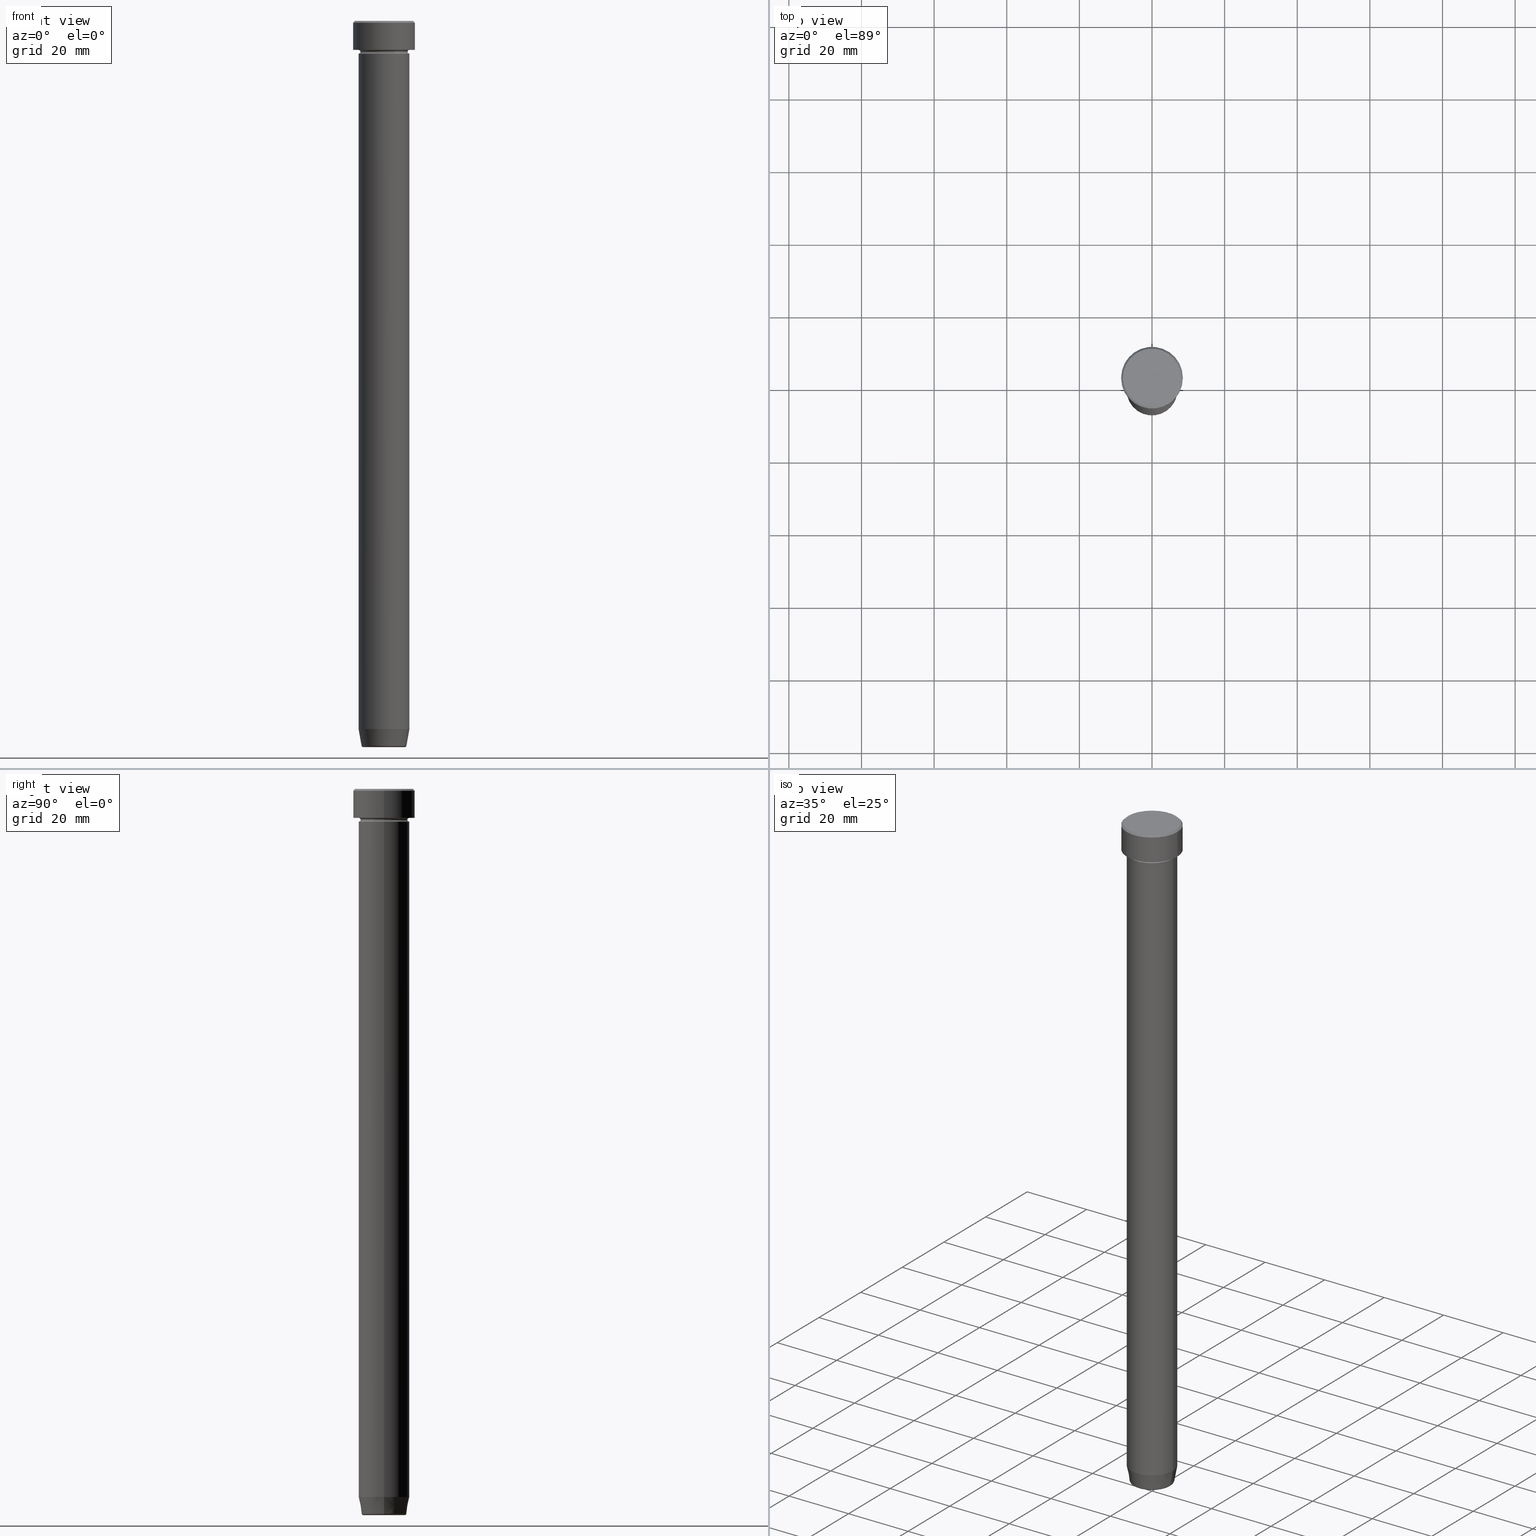
[diagram: canonical four-view strip — front | top / right | iso, engineering-drawing reading convention]
A machine part, canonical four-view strip (front | top / right | iso — engineering-drawing reading convention). The complete STEP part file that produces these views, byte-faithful:
ISO-10303-21;
HEADER;
FILE_DESCRIPTION (( 'STEP AP203' ),
    '1' );
FILE_NAME ('c11a.STEP',
    '2024-01-02T23:18:33',
    ( '' ),
    ( '' ),
    'SwSTEP 2.0',
    'SolidWorks 2019',
    '' );
FILE_SCHEMA (( 'CONFIG_CONTROL_DESIGN' ));
ENDSEC;

DATA;
#1 = EDGE_CURVE ( 'NONE', #361, #165, #266, .T. ) ;
#2 = DIRECTION ( 'NONE',  ( 1.000000000000000000, 0.000000000000000000, 0.000000000000000000 ) ) ;
#3 = ORIENTED_EDGE ( 'NONE', *, *, #259, .F. ) ;
#4 = CARTESIAN_POINT ( 'NONE',  ( -7.000000000000000888, 8.572527594031474176E-16, -8.500000000000000000 ) ) ;
#5 = DIRECTION ( 'NONE',  ( 0.000000000000000000, 0.000000000000000000, -1.000000000000000000 ) ) ;
#6 = ORIENTED_EDGE ( 'NONE', *, *, #192, .T. ) ;
#7 = CLOSED_SHELL ( 'NONE', ( #105, #390, #576, #452, #219, #418, #318, #239 ) ) ;
#8 = AXIS2_PLACEMENT_3D ( 'NONE', #4, #415, #190 ) ;
#9 = CARTESIAN_POINT ( 'NONE',  ( 0.000000000000000000, 0.000000000000000000, -9.000000000000001776 ) ) ;
#10 = CARTESIAN_POINT ( 'NONE',  ( 0.000000000000000000, 0.000000000000000000, -8.000000000000000000 ) ) ;
#11 = ORIENTED_EDGE ( 'NONE', *, *, #182, .F. ) ;
#12 = DIRECTION ( 'NONE',  ( -1.000000000000000000, -1.224646799147351482E-16, 0.000000000000000000 ) ) ;
#13 = ORIENTED_EDGE ( 'NONE', *, *, #35, .F. ) ;
#14 = PRODUCT_DEFINITION_FORMATION_WITH_SPECIFIED_SOURCE ( 'LIBOVOLN�', '', #560, .NOT_KNOWN. ) ;
#15 = AXIS2_PLACEMENT_3D ( 'NONE', #505, #429, #548 ) ;
#16 = ORGANIZATION ( 'NEUR�EN�', 'NEUR�EN�', '' ) ;
#17 = DIRECTION ( 'NONE',  ( 1.000000000000000000, 0.000000000000000000, 0.000000000000000000 ) ) ;
#18 = EDGE_LOOP ( 'NONE', ( #365, #121, #451, #296 ) ) ;
#19 = EDGE_CURVE ( 'NONE', #226, #348, #593, .T. ) ;
#20 = LINE ( 'NONE', #247, #319 ) ;
#21 = ORIENTED_EDGE ( 'NONE', *, *, #26, .F. ) ;
#22 = CARTESIAN_POINT ( 'NONE',  ( 6.999999999999999112, 0.000000000000000000, -22.00000000000000000 ) ) ;
#23 = ORIENTED_EDGE ( 'NONE', *, *, #182, .T. ) ;
#24 = CYLINDRICAL_SURFACE ( 'NONE', #363, 8.500000000000000000 ) ;
#25 = ORIENTED_EDGE ( 'NONE', *, *, #556, .T. ) ;
#26 = EDGE_CURVE ( 'NONE', #63, #348, #77, .T. ) ;
#27 = DIRECTION ( 'NONE',  ( 1.000000000000000000, 0.000000000000000000, 0.000000000000000000 ) ) ;
#28 = DIRECTION ( 'NONE',  ( 0.7071067811865487940, 8.659560562354950115E-17, -0.7071067811865463515 ) ) ;
#29 = FACE_OUTER_BOUND ( 'NONE', #434, .T. ) ;
#30 = ORIENTED_EDGE ( 'NONE', *, *, #435, .F. ) ;
#31 = CC_DESIGN_APPROVAL ( #49, ( #417 ) ) ;
#32 = DIRECTION ( 'NONE',  ( -0.000000000000000000, -0.000000000000000000, 1.000000000000000000 ) ) ;
#33 = CIRCLE ( 'NONE', #8, 0.5000000000000004441 ) ;
#34 = ORIENTED_EDGE ( 'NONE', *, *, #306, .T. ) ;
#35 = EDGE_CURVE ( 'NONE', #245, #441, #456, .T. ) ;
#36 = PERSON_AND_ORGANIZATION ( #555, #16 ) ;
#37 = DIRECTION ( 'NONE',  ( 0.1736481776669302479, 0.000000000000000000, 0.9848077530122081313 ) ) ;
#38 = PERSON_AND_ORGANIZATION ( #555, #16 ) ;
#39 = DIRECTION ( 'NONE',  ( 0.000000000000000000, -1.000000000000000000, 0.000000000000000000 ) ) ;
#40 = VERTEX_POINT ( 'NONE', #541 ) ;
#41 = DIRECTION ( 'NONE',  ( 1.000000000000000000, 0.000000000000000000, 0.000000000000000000 ) ) ;
#42 = CIRCLE ( 'NONE', #503, 0.5000000000000004441 ) ;
#43 = CARTESIAN_POINT ( 'NONE',  ( 0.000000000000000000, 0.000000000000000000, -9.000000000000001776 ) ) ;
#44 =( GEOMETRIC_REPRESENTATION_CONTEXT ( 3 ) GLOBAL_UNCERTAINTY_ASSIGNED_CONTEXT ( ( #52 ) ) GLOBAL_UNIT_ASSIGNED_CONTEXT ( ( #286, #469, #329 ) ) REPRESENTATION_CONTEXT ( 'NONE', 'WORKASPACE' ) );
#45 = EDGE_CURVE ( 'NONE', #361, #204, #419, .T. ) ;
#46 = CARTESIAN_POINT ( 'NONE',  ( -7.000000000000000888, 0.000000000000000000, -8.500000000000000000 ) ) ;
#47 = CARTESIAN_POINT ( 'NONE',  ( 7.000000000000000000, 0.000000000000000000, -9.000000000000001776 ) ) ;
#48 = ORIENTED_EDGE ( 'NONE', *, *, #58, .T. ) ;
#49 = APPROVAL ( #430, 'NEUR�EN�' ) ;
#50 = APPROVAL_DATE_TIME ( #371, #550 ) ;
#51 = CARTESIAN_POINT ( 'NONE',  ( -8.500000000000000000, 1.040949779275250140E-15, 0.000000000000000000 ) ) ;
#52 = UNCERTAINTY_MEASURE_WITH_UNIT (LENGTH_MEASURE( 1.000000000000000082E-05 ), #286, 'distance_accuracy_value', 'NONE');
#53 = SECURITY_CLASSIFICATION_LEVEL ( 'unclassified' ) ;
#54 = DIRECTION ( 'NONE',  ( 1.000000000000000000, 0.000000000000000000, 0.000000000000000000 ) ) ;
#55 = EDGE_LOOP ( 'NONE', ( #303, #25, #358, #11 ) ) ;
#56 = TOROIDAL_SURFACE ( 'NONE', #175, 7.000000000000000888, 0.5000000000000000000 ) ;
#57 = AXIS2_PLACEMENT_3D ( 'NONE', #546, #135, #598 ) ;
#58 = EDGE_CURVE ( 'NONE', #80, #63, #82, .T. ) ;
#59 = DIRECTION ( 'NONE',  ( -1.000000000000000000, 0.000000000000000000, 0.000000000000000000 ) ) ;
#60 = EDGE_LOOP ( 'NONE', ( #261, #13 ) ) ;
#61 = CARTESIAN_POINT ( 'NONE',  ( 6.999999999999999112, 0.000000000000000000, 0.000000000000000000 ) ) ;
#62 = APPLICATION_CONTEXT ( 'configuration controlled 3d designs of mechanical parts and assemblies' ) ;
#63 = VERTEX_POINT ( 'NONE', #586 ) ;
#64 = DATE_AND_TIME ( #114, #174 ) ;
#65 = DIRECTION ( 'NONE',  ( -0.000000000000000000, -0.000000000000000000, 1.000000000000000000 ) ) ;
#66 = EDGE_LOOP ( 'NONE', ( #543, #299, #34, #123 ) ) ;
#67 = ADVANCED_FACE ( 'NONE', ( #404 ), #56, .F. ) ;
#68 = AXIS2_PLACEMENT_3D ( 'NONE', #218, #401, #583 ) ;
#69 = CONICAL_SURFACE ( 'NONE', #408, 6.118365096457673680, 0.1745329251994328645 ) ;
#70 = CARTESIAN_POINT ( 'NONE',  ( 0.000000000000000000, 8.500000000000000000, -8.000000000000000000 ) ) ;
#71 = ORIENTED_EDGE ( 'NONE', *, *, #211, .T. ) ;
#72 = CARTESIAN_POINT ( 'NONE',  ( 0.000000000000000000, 6.999999999999999112, -22.00000000000000000 ) ) ;
#73 = ORIENTED_EDGE ( 'NONE', *, *, #284, .F. ) ;
#74 = EDGE_CURVE ( 'NONE', #441, #63, #313, .T. ) ;
#75 = DIRECTION ( 'NONE',  ( -1.000000000000000000, 0.000000000000000000, 0.000000000000000000 ) ) ;
#76 = ORIENTED_EDGE ( 'NONE', *, *, #373, .T. ) ;
#77 = CIRCLE ( 'NONE', #68, 8.500000000000000000 ) ;
#78 = AXIS2_PLACEMENT_3D ( 'NONE', #279, #142, #5 ) ;
#79 = PLANE ( 'NONE',  #540 ) ;
#80 = VERTEX_POINT ( 'NONE', #455 ) ;
#81 = DIRECTION ( 'NONE',  ( 1.000000000000000000, 0.000000000000000000, 0.000000000000000000 ) ) ;
#82 = LINE ( 'NONE', #271, #493 ) ;
#83 = CARTESIAN_POINT ( 'NONE',  ( 0.000000000000000000, 0.000000000000000000, 0.000000000000000000 ) ) ;
#84 = EDGE_LOOP ( 'NONE', ( #117, #423, #104, #73 ) ) ;
#85 = EDGE_CURVE ( 'NONE', #490, #334, #378, .T. ) ;
#86 = VECTOR ( 'NONE', #163, 1000.000000000000000 ) ;
#87 = CC_DESIGN_APPROVAL ( #587, ( #14 ) ) ;
#88 = DIRECTION ( 'NONE',  ( -1.000000000000000000, 0.000000000000000000, 0.000000000000000000 ) ) ;
#89 = AXIS2_PLACEMENT_3D ( 'NONE', #140, #507, #186 ) ;
#90 = AXIS2_PLACEMENT_3D ( 'NONE', #453, #312, #533 ) ;
#91 = EDGE_LOOP ( 'NONE', ( #562, #447 ) ) ;
#92 = APPROVAL_STATUS ( 'not_yet_approved' ) ;
#93 = CARTESIAN_POINT ( 'NONE',  ( 0.000000000000000000, 0.000000000000000000, 0.000000000000000000 ) ) ;
#94 = EDGE_CURVE ( 'NONE', #334, #490, #340, .T. ) ;
#95 = CARTESIAN_POINT ( 'NONE',  ( 5.698815280869036215, 0.000000000000000000, -199.5000000000000000 ) ) ;
#96 = EDGE_LOOP ( 'NONE', ( #485, #285, #269, #199 ) ) ;
#97 = AXIS2_PLACEMENT_3D ( 'NONE', #331, #194, #101 ) ;
#98 = FACE_OUTER_BOUND ( 'NONE', #91, .T. ) ;
#99 = APPROVAL_PERSON_ORGANIZATION ( #413, #550, #506 ) ;
#100 = DIRECTION ( 'NONE',  ( 0.000000000000000000, 0.000000000000000000, -1.000000000000000000 ) ) ;
#101 = DIRECTION ( 'NONE',  ( 1.000000000000000000, 0.000000000000000000, 0.000000000000000000 ) ) ;
#102 = PERSON_AND_ORGANIZATION_ROLE ( 'design_owner' ) ;
#103 = DIRECTION ( 'NONE',  ( -0.000000000000000000, -0.000000000000000000, 1.000000000000000000 ) ) ;
#104 = ORIENTED_EDGE ( 'NONE', *, *, #488, .F. ) ;
#105 = ADVANCED_FACE ( 'NONE', ( #236 ), #465, .T. ) ;
#106 = CARTESIAN_POINT ( 'NONE',  ( 0.000000000000000000, 0.000000000000000000, 0.000000000000000000 ) ) ;
#107 = ORIENTED_EDGE ( 'NONE', *, *, #532, .T. ) ;
#108 = CIRCLE ( 'NONE', #362, 6.999999999999999112 ) ;
#109 = CARTESIAN_POINT ( 'NONE',  ( 0.000000000000000000, 0.000000000000000000, -8.500000000000000000 ) ) ;
#110 = ORIENTED_EDGE ( 'NONE', *, *, #410, .T. ) ;
#111 = DIRECTION ( 'NONE',  ( -1.000000000000000000, 0.000000000000000000, -0.000000000000000000 ) ) ;
#112 = EDGE_CURVE ( 'NONE', #309, #251, #222, .T. ) ;
#113 = ORIENTED_EDGE ( 'NONE', *, *, #356, .T. ) ;
#114 = CALENDAR_DATE ( 2024, 3, 1 ) ;
#115 = FACE_OUTER_BOUND ( 'NONE', #60, .T. ) ;
#116 = AXIS2_PLACEMENT_3D ( 'NONE', #393, #388, #292 ) ;
#117 = ORIENTED_EDGE ( 'NONE', *, *, #158, .T. ) ;
#118 = CIRCLE ( 'NONE', #78, 0.5000000000000004441 ) ;
#119 = AXIS2_PLACEMENT_3D ( 'NONE', #535, #357, #88 ) ;
#120 = DIRECTION ( 'NONE',  ( -1.000000000000000000, 0.000000000000000000, 0.000000000000000000 ) ) ;
#121 = ORIENTED_EDGE ( 'NONE', *, *, #132, .T. ) ;
#122 = CARTESIAN_POINT ( 'NONE',  ( 6.500000000000000888, 0.000000000000000000, -8.500000000000000000 ) ) ;
#123 = ORIENTED_EDGE ( 'NONE', *, *, #149, .F. ) ;
#124 = CARTESIAN_POINT ( 'NONE',  ( -6.999999999999999112, 8.572527594031472204E-16, 0.000000000000000000 ) ) ;
#125 = DIRECTION ( 'NONE',  ( -0.000000000000000000, -0.000000000000000000, 1.000000000000000000 ) ) ;
#126 = TOROIDAL_SURFACE ( 'NONE', #578, 7.000000000000000888, 0.5000000000000000000 ) ;
#127 = AXIS2_PLACEMENT_3D ( 'NONE', #515, #379, #187 ) ;
#128 = FACE_OUTER_BOUND ( 'NONE', #96, .T. ) ;
#129 = DIRECTION ( 'NONE',  ( -0.000000000000000000, -0.000000000000000000, 1.000000000000000000 ) ) ;
#130 = LINE ( 'NONE', #580, #494 ) ;
#131 = EDGE_LOOP ( 'NONE', ( #3, #76, #443, #536 ) ) ;
#132 = EDGE_CURVE ( 'NONE', #581, #165, #108, .T. ) ;
#133 = DIRECTION ( 'NONE',  ( -1.000000000000000000, 0.000000000000000000, -0.000000000000000000 ) ) ;
#134 = CARTESIAN_POINT ( 'NONE',  ( 0.000000000000000000, 0.000000000000000000, -199.5868240888334526 ) ) ;
#135 = DIRECTION ( 'NONE',  ( 0.000000000000000000, 0.000000000000000000, -1.000000000000000000 ) ) ;
#136 = AXIS2_PLACEMENT_3D ( 'NONE', #516, #381, #54 ) ;
#137 = CARTESIAN_POINT ( 'NONE',  ( 0.000000000000000000, 0.000000000000000000, -8.500000000000000000 ) ) ;
#138 = EDGE_CURVE ( 'NONE', #531, #438, #396, .T. ) ;
#139 = DIRECTION ( 'NONE',  ( -0.000000000000000000, -0.000000000000000000, 1.000000000000000000 ) ) ;
#140 = CARTESIAN_POINT ( 'NONE',  ( 0.000000000000000000, 0.000000000000000000, 0.000000000000000000 ) ) ;
#141 = DIRECTION ( 'NONE',  ( -0.000000000000000000, -0.000000000000000000, 1.000000000000000000 ) ) ;
#142 = DIRECTION ( 'NONE',  ( 0.000000000000000000, -1.000000000000000000, 0.000000000000000000 ) ) ;
#143 = DATE_AND_TIME ( #420, #547 ) ;
#144 = VECTOR ( 'NONE', #216, 1000.000000000000000 ) ;
#145 = CARTESIAN_POINT ( 'NONE',  ( -6.191219157375138060, 8.077292158965354448E-16, -199.5868240888334526 ) ) ;
#146 = AXIS2_PLACEMENT_3D ( 'NONE', #354, #499, #81 ) ;
#147 = DIRECTION ( 'NONE',  ( -0.000000000000000000, -0.000000000000000000, 1.000000000000000000 ) ) ;
#148 = APPLICATION_CONTEXT ( 'configuration controlled 3d designs of mechanical parts and assemblies' ) ;
#149 = EDGE_CURVE ( 'NONE', #342, #238, #446, .T. ) ;
#150 = EDGE_LOOP ( 'NONE', ( #389, #228 ) ) ;
#151 = PERSON_AND_ORGANIZATION_ROLE ( 'classification_officer' ) ;
#152 = FACE_OUTER_BOUND ( 'NONE', #352, .T. ) ;
#153 = DATE_TIME_ROLE ( 'classification_date' ) ;
#154 = CARTESIAN_POINT ( 'NONE',  ( 7.000000000000000888, 8.572527594031474176E-16, -8.500000000000000000 ) ) ;
#155 = CIRCLE ( 'NONE', #273, 0.5000000000000004441 ) ;
#156 = ORIENTED_EDGE ( 'NONE', *, *, #460, .T. ) ;
#157 = PRODUCT_DEFINITION_SHAPE ( 'NONE', 'NONE',  #170 ) ;
#158 = EDGE_CURVE ( 'NONE', #165, #581, #473, .T. ) ;
#159 = DIRECTION ( 'NONE',  ( 1.000000000000000000, 0.000000000000000000, 0.000000000000000000 ) ) ;
#160 = VERTEX_POINT ( 'NONE', #509 ) ;
#161 = DIRECTION ( 'NONE',  ( 1.000000000000000000, 0.000000000000000000, 0.000000000000000000 ) ) ;
#162 = ORIENTED_EDGE ( 'NONE', *, *, #435, .T. ) ;
#163 = DIRECTION ( 'NONE',  ( -0.000000000000000000, -0.000000000000000000, 1.000000000000000000 ) ) ;
#164 = CIRCLE ( 'NONE', #282, 6.191219157375138060 ) ;
#165 = VERTEX_POINT ( 'NONE', #425 ) ;
#166 = CIRCLE ( 'NONE', #351, 8.000000000000000000 ) ;
#167 = AXIS2_PLACEMENT_3D ( 'NONE', #46, #185, #100 ) ;
#168 = DIRECTION ( 'NONE',  ( -1.000000000000000000, 0.000000000000000000, -0.000000000000000000 ) ) ;
#169 = EDGE_LOOP ( 'NONE', ( #181, #254 ) ) ;
#170 = PRODUCT_DEFINITION ( 'NEZN�M�', '', #14, #246 ) ;
#171 = CARTESIAN_POINT ( 'NONE',  ( 0.000000000000000000, 0.000000000000000000, 0.000000000000000000 ) ) ;
#172 = EDGE_LOOP ( 'NONE', ( #476, #508, #30, #232 ) ) ;
#173 = CARTESIAN_POINT ( 'NONE',  ( 0.000000000000000000, 0.000000000000000000, -22.00000000000000000 ) ) ;
#174 = LOCAL_TIME ( 0, 18, 33.00000000000000000, #197 ) ;
#175 = AXIS2_PLACEMENT_3D ( 'NONE', #497, #221, #406 ) ;
#176 = EDGE_CURVE ( 'NONE', #80, #226, #166, .T. ) ;
#177 = DIRECTION ( 'NONE',  ( 0.000000000000000000, 0.000000000000000000, -1.000000000000000000 ) ) ;
#178 = DIRECTION ( 'NONE',  ( -0.000000000000000000, -0.000000000000000000, 1.000000000000000000 ) ) ;
#179 = LINE ( 'NONE', #405, #427 ) ;
#180 = ORIENTED_EDGE ( 'NONE', *, *, #514, .T. ) ;
#181 = ORIENTED_EDGE ( 'NONE', *, *, #112, .T. ) ;
#182 = EDGE_CURVE ( 'NONE', #438, #238, #118, .T. ) ;
#183 = VECTOR ( 'NONE', #37, 1000.000000000000114 ) ;
#184 = DIRECTION ( 'NONE',  ( 1.000000000000000000, 0.000000000000000000, 0.000000000000000000 ) ) ;
#185 = DIRECTION ( 'NONE',  ( -0.000000000000000000, -1.000000000000000000, -0.000000000000000000 ) ) ;
#186 = DIRECTION ( 'NONE',  ( 1.000000000000000000, 0.000000000000000000, 0.000000000000000000 ) ) ;
#187 = DIRECTION ( 'NONE',  ( 1.000000000000000000, 0.000000000000000000, 0.000000000000000000 ) ) ;
#188 = DIRECTION ( 'NONE',  ( -0.000000000000000000, -0.000000000000000000, 1.000000000000000000 ) ) ;
#189 = AXIS2_PLACEMENT_3D ( 'NONE', #225, #359, #588 ) ;
#190 = DIRECTION ( 'NONE',  ( -1.000000000000000000, 1.224646799147351482E-16, 0.000000000000000000 ) ) ;
#191 = LOCAL_TIME ( 0, 18, 33.00000000000000000, #551 ) ;
#192 = EDGE_CURVE ( 'NONE', #238, #342, #193, .T. ) ;
#193 = CIRCLE ( 'NONE', #529, 7.000000000000000000 ) ;
#194 = DIRECTION ( 'NONE',  ( -0.000000000000000000, -0.000000000000000000, 1.000000000000000000 ) ) ;
#195 = AXIS2_PLACEMENT_3D ( 'NONE', #83, #141, #41 ) ;
#196 = CYLINDRICAL_SURFACE ( 'NONE', #116, 6.999999999999999112 ) ;
#197 = COORDINATED_UNIVERSAL_TIME_OFFSET ( 1, 0, .AHEAD. ) ;
#198 = CARTESIAN_POINT ( 'NONE',  ( -5.698815280869036215, 7.280546308273765676E-16, -200.0000000000000000 ) ) ;
#199 = ORIENTED_EDGE ( 'NONE', *, *, #26, .T. ) ;
#200 = EDGE_CURVE ( 'NONE', #309, #361, #264, .T. ) ;
#201 = PERSON_AND_ORGANIZATION ( #555, #16 ) ;
#202 = DIRECTION ( 'NONE',  ( 1.000000000000000000, 0.000000000000000000, 0.000000000000000000 ) ) ;
#203 = AXIS2_PLACEMENT_3D ( 'NONE', #9, #324, #513 ) ;
#204 = VERTEX_POINT ( 'NONE', #145 ) ;
#205 = AXIS2_PLACEMENT_3D ( 'NONE', #70, #366, #133 ) ;
#206 = DIRECTION ( 'NONE',  ( -0.000000000000000000, -0.000000000000000000, 1.000000000000000000 ) ) ;
#207 = ORIENTED_EDGE ( 'NONE', *, *, #132, .F. ) ;
#208 = FACE_OUTER_BOUND ( 'NONE', #55, .T. ) ;
#209 = ORIENTED_EDGE ( 'NONE', *, *, #58, .F. ) ;
#210 = FACE_OUTER_BOUND ( 'NONE', #572, .T. ) ;
#211 = EDGE_CURVE ( 'NONE', #251, #204, #155, .T. ) ;
#212 = EDGE_LOOP ( 'NONE', ( #525, #107, #392, #291 ) ) ;
#213 = TOROIDAL_SURFACE ( 'NONE', #539, 7.000000000000000888, 0.5000000000000000000 ) ;
#214 = AXIS2_PLACEMENT_3D ( 'NONE', #10, #524, #17 ) ;
#215 = CARTESIAN_POINT ( 'NONE',  ( -7.000000000000000888, 0.000000000000000000, -8.000000000000000000 ) ) ;
#216 = DIRECTION ( 'NONE',  ( -0.7071067811865487940, 0.000000000000000000, -0.7071067811865463515 ) ) ;
#217 = CARTESIAN_POINT ( 'NONE',  ( 0.000000000000000000, 0.000000000000000000, -8.000000000000000000 ) ) ;
#218 = CARTESIAN_POINT ( 'NONE',  ( 0.000000000000000000, 0.000000000000000000, -0.4999999999999987232 ) ) ;
#219 = ADVANCED_FACE ( 'NONE', ( #416 ), #596, .T. ) ;
#220 = FACE_OUTER_BOUND ( 'NONE', #305, .T. ) ;
#221 = DIRECTION ( 'NONE',  ( 0.000000000000000000, 0.000000000000000000, -1.000000000000000000 ) ) ;
#222 = CIRCLE ( 'NONE', #136, 5.698815280869036215 ) ;
#223 = CC_DESIGN_PERSON_AND_ORGANIZATION_ASSIGNMENT ( #526, #151, ( #417 ) ) ;
#224 = CIRCLE ( 'NONE', #528, 6.999999999999999112 ) ;
#225 = CARTESIAN_POINT ( 'NONE',  ( 0.000000000000000000, 0.000000000000000000, -8.000000000000000000 ) ) ;
#226 = VERTEX_POINT ( 'NONE', #599 ) ;
#227 = PERSON_AND_ORGANIZATION_ROLE ( 'creator' ) ;
#228 = ORIENTED_EDGE ( 'NONE', *, *, #94, .F. ) ;
#229 = APPROVAL_ROLE ( '' ) ;
#230 = DIRECTION ( 'NONE',  ( 0.000000000000000000, 0.000000000000000000, -1.000000000000000000 ) ) ;
#231 = ADVANCED_FACE ( 'NONE', ( #98 ), #240, .T. ) ;
#232 = ORIENTED_EDGE ( 'NONE', *, *, #565, .F. ) ;
#233 = AXIS2_PLACEMENT_3D ( 'NONE', #561, #467, #184 ) ;
#234 = APPROVAL_STATUS ( 'not_yet_approved' ) ;
#235 = VECTOR ( 'NONE', #316, 1000.000000000000000 ) ;
#236 = FACE_OUTER_BOUND ( 'NONE', #382, .T. ) ;
#237 = FACE_OUTER_BOUND ( 'NONE', #263, .T. ) ;
#238 = VERTEX_POINT ( 'NONE', #47 ) ;
#239 = ADVANCED_FACE ( 'NONE', ( #237 ), #310, .T. ) ;
#240 = PLANE ( 'NONE',  #89 ) ;
#241 = CALENDAR_DATE ( 2024, 3, 1 ) ;
#242 = AXIS2_PLACEMENT_3D ( 'NONE', #72, #257, #111 ) ;
#243 = DIRECTION ( 'NONE',  ( 1.000000000000000000, 0.000000000000000000, 0.000000000000000000 ) ) ;
#244 = CIRCLE ( 'NONE', #57, 5.698815280869036215 ) ;
#245 = VERTEX_POINT ( 'NONE', #557 ) ;
#246 = DESIGN_CONTEXT ( 'detailed design', #62, 'design' ) ;
#247 = CARTESIAN_POINT ( 'NONE',  ( 6.999999999999999112, 0.000000000000000000, 0.000000000000000000 ) ) ;
#248 = EDGE_CURVE ( 'NONE', #245, #348, #470, .T. ) ;
#249 = ORIENTED_EDGE ( 'NONE', *, *, #460, .F. ) ;
#250 = DIRECTION ( 'NONE',  ( 0.000000000000000000, 0.000000000000000000, -1.000000000000000000 ) ) ;
#251 = VERTEX_POINT ( 'NONE', #198 ) ;
#252 = CARTESIAN_POINT ( 'NONE',  ( 0.000000000000000000, 0.000000000000000000, -8.500000000000000000 ) ) ;
#253 = AXIS2_PLACEMENT_3D ( 'NONE', #134, #129, #449 ) ;
#254 = ORIENTED_EDGE ( 'NONE', *, *, #584, .T. ) ;
#255 = CONICAL_SURFACE ( 'NONE', #90, 6.118365096457673680, 0.1745329251994328645 ) ;
#256 = APPROVAL_ROLE ( '' ) ;
#257 = DIRECTION ( 'NONE',  ( 0.000000000000000000, 0.000000000000000000, -1.000000000000000000 ) ) ;
#258 = ORIENTED_EDGE ( 'NONE', *, *, #200, .F. ) ;
#259 = EDGE_CURVE ( 'NONE', #438, #160, #42, .T. ) ;
#260 = DIRECTION ( 'NONE',  ( -0.000000000000000000, -0.000000000000000000, 1.000000000000000000 ) ) ;
#261 = ORIENTED_EDGE ( 'NONE', *, *, #356, .F. ) ;
#262 = DIRECTION ( 'NONE',  ( 0.000000000000000000, 0.000000000000000000, -1.000000000000000000 ) ) ;
#263 = EDGE_LOOP ( 'NONE', ( #276, #517, #397, #495 ) ) ;
#264 = CIRCLE ( 'NONE', #339, 0.5000000000000004441 ) ;
#265 = CARTESIAN_POINT ( 'NONE',  ( 0.000000000000000000, 0.000000000000000000, -22.00000000000000000 ) ) ;
#266 = LINE ( 'NONE', #317, #183 ) ;
#267 = ADVANCED_FACE ( 'NONE', ( #433 ), #442, .T. ) ;
#268 = DIRECTION ( 'NONE',  ( -0.000000000000000000, -0.000000000000000000, 1.000000000000000000 ) ) ;
#269 = ORIENTED_EDGE ( 'NONE', *, *, #74, .T. ) ;
#270 = CARTESIAN_POINT ( 'NONE',  ( 0.000000000000000000, 0.000000000000000000, -22.00000000000000000 ) ) ;
#271 = CARTESIAN_POINT ( 'NONE',  ( 8.000000000000000000, 9.797174393178825657E-16, 0.000000000000000000 ) ) ;
#272 = AXIS2_PLACEMENT_3D ( 'NONE', #106, #385, #159 ) ;
#273 = AXIS2_PLACEMENT_3D ( 'NONE', #421, #327, #372 ) ;
#274 = AXIS2_PLACEMENT_3D ( 'NONE', #350, #343, #571 ) ;
#275 = DIRECTION ( 'NONE',  ( 1.000000000000000000, 0.000000000000000000, 0.000000000000000000 ) ) ;
#276 = ORIENTED_EDGE ( 'NONE', *, *, #211, .F. ) ;
#277 = ADVANCED_FACE ( 'NONE', ( #440 ), #126, .F. ) ;
#278 = DATE_AND_TIME ( #592, #191 ) ;
#279 = CARTESIAN_POINT ( 'NONE',  ( 7.000000000000000888, 0.000000000000000000, -8.500000000000000000 ) ) ;
#280 = COORDINATED_UNIVERSAL_TIME_OFFSET ( 1, 0, .AHEAD. ) ;
#281 = CARTESIAN_POINT ( 'NONE',  ( 0.000000000000000000, 0.000000000000000000, -22.00000000000000000 ) ) ;
#282 = AXIS2_PLACEMENT_3D ( 'NONE', #383, #341, #120 ) ;
#283 = CARTESIAN_POINT ( 'NONE',  ( 0.000000000000000000, 0.000000000000000000, -195.0000000000000000 ) ) ;
#284 = EDGE_CURVE ( 'NONE', #165, #527, #20, .T. ) ;
#285 = ORIENTED_EDGE ( 'NONE', *, *, #35, .T. ) ;
#286 =( LENGTH_UNIT ( ) NAMED_UNIT ( * ) SI_UNIT ( .MILLI., .METRE. ) );
#287 = DIRECTION ( 'NONE',  ( 1.000000000000000000, 0.000000000000000000, 0.000000000000000000 ) ) ;
#288 = DIRECTION ( 'NONE',  ( -0.000000000000000000, -0.000000000000000000, 1.000000000000000000 ) ) ;
#289 = EDGE_LOOP ( 'NONE', ( #113, #462, #156, #487 ) ) ;
#290 = ADVANCED_FACE ( 'NONE', ( #208 ), #213, .F. ) ;
#291 = ORIENTED_EDGE ( 'NONE', *, *, #1, .F. ) ;
#292 = DIRECTION ( 'NONE',  ( 1.000000000000000000, 0.000000000000000000, 0.000000000000000000 ) ) ;
#293 = ORIENTED_EDGE ( 'NONE', *, *, #306, .F. ) ;
#294 = PERSON_AND_ORGANIZATION ( #555, #16 ) ;
#295 = CARTESIAN_POINT ( 'NONE',  ( 6.191219157375138060, 0.000000000000000000, -199.5868240888334526 ) ) ;
#296 = ORIENTED_EDGE ( 'NONE', *, *, #410, .F. ) ;
#297 = CIRCLE ( 'NONE', #466, 7.000000000000000888 ) ;
#298 = CARTESIAN_POINT ( 'NONE',  ( 5.698815280869036215, 0.000000000000000000, -200.0000000000000000 ) ) ;
#299 = ORIENTED_EDGE ( 'NONE', *, *, #94, .T. ) ;
#300 = AXIS2_PLACEMENT_3D ( 'NONE', #538, #177, #395 ) ;
#301 = ADVANCED_FACE ( 'NONE', ( #431 ), #196, .T. ) ;
#302 = CARTESIAN_POINT ( 'NONE',  ( 0.000000000000000000, 0.000000000000000000, -8.500000000000000000 ) ) ;
#303 = ORIENTED_EDGE ( 'NONE', *, *, #138, .F. ) ;
#304 = CARTESIAN_POINT ( 'NONE',  ( 8.500000000000000000, 0.000000000000000000, -8.000000000000000000 ) ) ;
#305 = EDGE_LOOP ( 'NONE', ( #367, #48, #249, #534 ) ) ;
#306 = EDGE_CURVE ( 'NONE', #490, #238, #478, .T. ) ;
#307 = FACE_OUTER_BOUND ( 'NONE', #212, .T. ) ;
#308 = LOCAL_TIME ( 0, 18, 33.00000000000000000, #335 ) ;
#309 = VERTEX_POINT ( 'NONE', #298 ) ;
#310 = TOROIDAL_SURFACE ( 'NONE', #97, 5.698815280869036215, 0.5000000000000000000 ) ;
#311 = AXIS2_PLACEMENT_3D ( 'NONE', #270, #268, #411 ) ;
#312 = DIRECTION ( 'NONE',  ( -0.000000000000000000, -0.000000000000000000, 1.000000000000000000 ) ) ;
#313 = LINE ( 'NONE', #589, #597 ) ;
#314 = DIRECTION ( 'NONE',  ( -0.1736481776669302479, 2.126576849575770682E-17, 0.9848077530122081313 ) ) ;
#315 = ORIENTED_EDGE ( 'NONE', *, *, #45, .F. ) ;
#316 = DIRECTION ( 'NONE',  ( -0.000000000000000000, -0.000000000000000000, 1.000000000000000000 ) ) ;
#317 = CARTESIAN_POINT ( 'NONE',  ( 6.118365096457673680, 0.000000000000000000, -200.0000000000000000 ) ) ;
#318 = ADVANCED_FACE ( 'NONE', ( #336 ), #437, .F. ) ;
#319 = VECTOR ( 'NONE', #260, 1000.000000000000000 ) ;
#320 = AXIS2_PLACEMENT_3D ( 'NONE', #554, #139, #321 ) ;
#321 = DIRECTION ( 'NONE',  ( 1.000000000000000000, 0.000000000000000000, 0.000000000000000000 ) ) ;
#322 = CARTESIAN_POINT ( 'NONE',  ( 0.000000000000000000, 0.000000000000000000, -195.0000000000000000 ) ) ;
#323 = CC_DESIGN_PERSON_AND_ORGANIZATION_ASSIGNMENT ( #201, #523, ( #14 ) ) ;
#324 = DIRECTION ( 'NONE',  ( -0.000000000000000000, -0.000000000000000000, 1.000000000000000000 ) ) ;
#325 = FACE_OUTER_BOUND ( 'NONE', #84, .T. ) ;
#326 = EDGE_CURVE ( 'NONE', #204, #361, #164, .T. ) ;
#327 = DIRECTION ( 'NONE',  ( 1.224646799147353207E-16, 1.000000000000000000, 0.000000000000000000 ) ) ;
#328 = CLOSED_SHELL ( 'NONE', ( #479, #277, #290, #347, #471, #267, #231, #428, #384, #301, #368, #67, #520 ) ) ;
#329 =( NAMED_UNIT ( * ) SI_UNIT ( $, .STERADIAN. ) SOLID_ANGLE_UNIT ( ) );
#330 = CIRCLE ( 'NONE', #214, 8.500000000000000000 ) ;
#331 = CARTESIAN_POINT ( 'NONE',  ( 0.000000000000000000, 0.000000000000000000, -199.5000000000000000 ) ) ;
#332 = MECHANICAL_CONTEXT ( 'NONE', #148, 'mechanical' ) ;
#333 = CARTESIAN_POINT ( 'NONE',  ( 0.000000000000000000, 0.000000000000000000, -22.00000000000000000 ) ) ;
#334 = VERTEX_POINT ( 'NONE', #564 ) ;
#335 = COORDINATED_UNIVERSAL_TIME_OFFSET ( 1, 0, .AHEAD. ) ;
#336 = FACE_OUTER_BOUND ( 'NONE', #169, .T. ) ;
#337 = CC_DESIGN_DATE_AND_TIME_ASSIGNMENT ( #278, #459, ( #170 ) ) ;
#338 = CC_DESIGN_SECURITY_CLASSIFICATION ( #417, ( #14 ) ) ;
#339 = AXIS2_PLACEMENT_3D ( 'NONE', #95, #39, #230 ) ;
#340 = CIRCLE ( 'NONE', #510, 6.999999999999999112 ) ;
#341 = DIRECTION ( 'NONE',  ( -0.000000000000000000, -0.000000000000000000, 1.000000000000000000 ) ) ;
#342 = VERTEX_POINT ( 'NONE', #575 ) ;
#343 = DIRECTION ( 'NONE',  ( 0.000000000000000000, -0.000000000000000000, 1.000000000000000000 ) ) ;
#344 = ORIENTED_EDGE ( 'NONE', *, *, #532, .F. ) ;
#345 = PERSON_AND_ORGANIZATION ( #555, #16 ) ;
#346 = FACE_BOUND ( 'NONE', #386, .T. ) ;
#347 = ADVANCED_FACE ( 'NONE', ( #152 ), #518, .T. ) ;
#348 = VERTEX_POINT ( 'NONE', #475 ) ;
#349 = CIRCLE ( 'NONE', #195, 8.000000000000000000 ) ;
#350 = CARTESIAN_POINT ( 'NONE',  ( 0.000000000000000000, 1.836970198721030062E-14, -200.0000000000000000 ) ) ;
#351 = AXIS2_PLACEMENT_3D ( 'NONE', #93, #553, #370 ) ;
#352 = EDGE_LOOP ( 'NONE', ( #574, #355, #432, #293 ) ) ;
#353 = CIRCLE ( 'NONE', #167, 0.5000000000000004441 ) ;
#354 = CARTESIAN_POINT ( 'NONE',  ( 0.000000000000000000, 0.000000000000000000, -0.4999999999999987232 ) ) ;
#355 = ORIENTED_EDGE ( 'NONE', *, *, #498, .T. ) ;
#356 = EDGE_CURVE ( 'NONE', #441, #245, #330, .T. ) ;
#357 = DIRECTION ( 'NONE',  ( 0.000000000000000000, 0.000000000000000000, -1.000000000000000000 ) ) ;
#358 = ORIENTED_EDGE ( 'NONE', *, *, #149, .T. ) ;
#359 = DIRECTION ( 'NONE',  ( -0.000000000000000000, -0.000000000000000000, 1.000000000000000000 ) ) ;
#360 = APPROVAL_PERSON_ORGANIZATION ( #294, #49, #256 ) ;
#361 = VERTEX_POINT ( 'NONE', #295 ) ;
#362 = AXIS2_PLACEMENT_3D ( 'NONE', #283, #103, #243 ) ;
#363 = AXIS2_PLACEMENT_3D ( 'NONE', #448, #585, #496 ) ;
#364 = CARTESIAN_POINT ( 'NONE',  ( 6.999999999999999112, 0.000000000000000000, -22.00000000000000000 ) ) ;
#365 = ORIENTED_EDGE ( 'NONE', *, *, #398, .F. ) ;
#366 = DIRECTION ( 'NONE',  ( 0.000000000000000000, 0.000000000000000000, -1.000000000000000000 ) ) ;
#367 = ORIENTED_EDGE ( 'NONE', *, *, #176, .F. ) ;
#368 = ADVANCED_FACE ( 'NONE', ( #566 ), #380, .F. ) ;
#369 = CYLINDRICAL_SURFACE ( 'NONE', #320, 6.999999999999999112 ) ;
#370 = DIRECTION ( 'NONE',  ( 1.000000000000000000, 0.000000000000000000, 0.000000000000000000 ) ) ;
#371 = DATE_AND_TIME ( #374, #436 ) ;
#372 = DIRECTION ( 'NONE',  ( -1.000000000000000000, 1.224646799147351482E-16, 0.000000000000000000 ) ) ;
#373 = EDGE_CURVE ( 'NONE', #438, #531, #579, .T. ) ;
#374 = CALENDAR_DATE ( 2024, 3, 1 ) ;
#375 = DIRECTION ( 'NONE',  ( 1.000000000000000000, 0.000000000000000000, 0.000000000000000000 ) ) ;
#376 = DIRECTION ( 'NONE',  ( 1.000000000000000000, 0.000000000000000000, 0.000000000000000000 ) ) ;
#377 = CIRCLE ( 'NONE', #146, 8.500000000000000000 ) ;
#378 = CIRCLE ( 'NONE', #407, 6.999999999999999112 ) ;
#379 = DIRECTION ( 'NONE',  ( 0.000000000000000000, 0.000000000000000000, 1.000000000000000000 ) ) ;
#380 = TOROIDAL_SURFACE ( 'NONE', #399, 7.000000000000000888, 0.5000000000000000000 ) ;
#381 = DIRECTION ( 'NONE',  ( 0.000000000000000000, 0.000000000000000000, -1.000000000000000000 ) ) ;
#382 = EDGE_LOOP ( 'NONE', ( #480, #71, #315, #258 ) ) ;
#383 = CARTESIAN_POINT ( 'NONE',  ( 0.000000000000000000, 0.000000000000000000, -199.5868240888334526 ) ) ;
#384 = ADVANCED_FACE ( 'NONE', ( #346, #115 ), #484, .T. ) ;
#385 = DIRECTION ( 'NONE',  ( -0.000000000000000000, -0.000000000000000000, 1.000000000000000000 ) ) ;
#386 = EDGE_LOOP ( 'NONE', ( #162, #180 ) ) ;
#387 = DATE_AND_TIME ( #241, #308 ) ;
#388 = DIRECTION ( 'NONE',  ( -0.000000000000000000, -0.000000000000000000, 1.000000000000000000 ) ) ;
#389 = ORIENTED_EDGE ( 'NONE', *, *, #85, .F. ) ;
#390 = ADVANCED_FACE ( 'NONE', ( #307 ), #255, .T. ) ;
#391 = DIRECTION ( 'NONE',  ( 1.000000000000000000, 0.000000000000000000, 0.000000000000000000 ) ) ;
#392 = ORIENTED_EDGE ( 'NONE', *, *, #158, .F. ) ;
#393 = CARTESIAN_POINT ( 'NONE',  ( 0.000000000000000000, 0.000000000000000000, 0.000000000000000000 ) ) ;
#394 = ORIENTED_EDGE ( 'NONE', *, *, #326, .T. ) ;
#395 = DIRECTION ( 'NONE',  ( -1.000000000000000000, 0.000000000000000000, 0.000000000000000000 ) ) ;
#396 = CIRCLE ( 'NONE', #558, 6.500000000000000888 ) ;
#397 = ORIENTED_EDGE ( 'NONE', *, *, #200, .T. ) ;
#398 = EDGE_CURVE ( 'NONE', #581, #40, #492, .T. ) ;
#399 = AXIS2_PLACEMENT_3D ( 'NONE', #252, #206, #391 ) ;
#400 = FACE_OUTER_BOUND ( 'NONE', #457, .T. ) ;
#401 = DIRECTION ( 'NONE',  ( 0.000000000000000000, 0.000000000000000000, -1.000000000000000000 ) ) ;
#402 = MANIFOLD_SOLID_BREP ( 'Zkosen�1', #328 ) ;
#403 = FACE_OUTER_BOUND ( 'NONE', #289, .T. ) ;
#404 = FACE_OUTER_BOUND ( 'NONE', #131, .T. ) ;
#405 = CARTESIAN_POINT ( 'NONE',  ( -6.999999999999999112, 8.572527594031472204E-16, 0.000000000000000000 ) ) ;
#406 = DIRECTION ( 'NONE',  ( -1.000000000000000000, 0.000000000000000000, 0.000000000000000000 ) ) ;
#407 = AXIS2_PLACEMENT_3D ( 'NONE', #281, #147, #2 ) ;
#408 = AXIS2_PLACEMENT_3D ( 'NONE', #590, #450, #27 ) ;
#409 = MANIFOLD_SOLID_BREP ( 'Zaoblit4', #7 ) ;
#410 = EDGE_CURVE ( 'NONE', #40, #527, #511, .T. ) ;
#411 = DIRECTION ( 'NONE',  ( 1.000000000000000000, 0.000000000000000000, 0.000000000000000000 ) ) ;
#412 = DIRECTION ( 'NONE',  ( 1.000000000000000000, 0.000000000000000000, 0.000000000000000000 ) ) ;
#413 = PERSON_AND_ORGANIZATION ( #555, #16 ) ;
#414 = VERTEX_POINT ( 'NONE', #215 ) ;
#415 = DIRECTION ( 'NONE',  ( 1.224646799147353207E-16, 1.000000000000000000, 0.000000000000000000 ) ) ;
#416 = FACE_OUTER_BOUND ( 'NONE', #18, .T. ) ;
#417 = SECURITY_CLASSIFICATION ( '', '', #53 ) ;
#418 = ADVANCED_FACE ( 'NONE', ( #400 ), #69, .T. ) ;
#419 = CIRCLE ( 'NONE', #253, 6.191219157375138060 ) ;
#420 = CALENDAR_DATE ( 2024, 3, 1 ) ;
#421 = CARTESIAN_POINT ( 'NONE',  ( -5.698815280869036215, 6.979035892648289730E-16, -199.5000000000000000 ) ) ;
#422 = COORDINATED_UNIVERSAL_TIME_OFFSET ( 1, 0, .AHEAD. ) ;
#423 = ORIENTED_EDGE ( 'NONE', *, *, #398, .T. ) ;
#424 = CARTESIAN_POINT ( 'NONE',  ( -6.999999999999999112, 8.572527594031472204E-16, -195.0000000000000000 ) ) ;
#425 = CARTESIAN_POINT ( 'NONE',  ( 6.999999999999999112, 0.000000000000000000, -195.0000000000000000 ) ) ;
#426 = VECTOR ( 'NONE', #521, 1000.000000000000000 ) ;
#427 = VECTOR ( 'NONE', #32, 1000.000000000000000 ) ;
#428 = ADVANCED_FACE ( 'NONE', ( #128 ), #24, .T. ) ;
#429 = DIRECTION ( 'NONE',  ( -0.000000000000000000, -0.000000000000000000, 1.000000000000000000 ) ) ;
#430 = APPROVAL_STATUS ( 'not_yet_approved' ) ;
#431 = FACE_OUTER_BOUND ( 'NONE', #66, .T. ) ;
#432 = ORIENTED_EDGE ( 'NONE', *, *, #192, .F. ) ;
#433 = FACE_OUTER_BOUND ( 'NONE', #150, .T. ) ;
#434 = EDGE_LOOP ( 'NONE', ( #577, #110 ) ) ;
#435 = EDGE_CURVE ( 'NONE', #414, #160, #297, .T. ) ;
#436 = LOCAL_TIME ( 0, 18, 33.00000000000000000, #422 ) ;
#437 = PLANE ( 'NONE',  #274 ) ;
#438 = VERTEX_POINT ( 'NONE', #122 ) ;
#439 = CC_DESIGN_PERSON_AND_ORGANIZATION_ASSIGNMENT ( #345, #477, ( #14 ) ) ;
#440 = FACE_OUTER_BOUND ( 'NONE', #172, .T. ) ;
#441 = VERTEX_POINT ( 'NONE', #304 ) ;
#442 = PLANE ( 'NONE',  #242 ) ;
#443 = ORIENTED_EDGE ( 'NONE', *, *, #565, .T. ) ;
#444 = DIRECTION ( 'NONE',  ( -0.000000000000000000, -0.000000000000000000, 1.000000000000000000 ) ) ;
#445 = CC_DESIGN_PERSON_AND_ORGANIZATION_ASSIGNMENT ( #36, #227, ( #170 ) ) ;
#446 = CIRCLE ( 'NONE', #203, 7.000000000000000000 ) ;
#447 = ORIENTED_EDGE ( 'NONE', *, *, #176, .T. ) ;
#448 = CARTESIAN_POINT ( 'NONE',  ( 0.000000000000000000, 0.000000000000000000, 0.000000000000000000 ) ) ;
#449 = DIRECTION ( 'NONE',  ( -1.000000000000000000, 0.000000000000000000, 0.000000000000000000 ) ) ;
#450 = DIRECTION ( 'NONE',  ( -0.000000000000000000, -0.000000000000000000, 1.000000000000000000 ) ) ;
#451 = ORIENTED_EDGE ( 'NONE', *, *, #284, .T. ) ;
#452 = ADVANCED_FACE ( 'NONE', ( #29 ), #79, .F. ) ;
#453 = CARTESIAN_POINT ( 'NONE',  ( 0.000000000000000000, 0.000000000000000000, -200.0000000000000000 ) ) ;
#454 = CIRCLE ( 'NONE', #189, 7.000000000000000888 ) ;
#455 = CARTESIAN_POINT ( 'NONE',  ( 8.000000000000000000, 1.010333609296566550E-15, 0.000000000000000000 ) ) ;
#456 = CIRCLE ( 'NONE', #482, 8.500000000000000000 ) ;
#457 = EDGE_LOOP ( 'NONE', ( #344, #394, #522, #207 ) ) ;
#458 = ADVANCED_BREP_SHAPE_REPRESENTATION ( 'c11a', ( #402, #409, #127 ), #44 ) ;
#459 = DATE_TIME_ROLE ( 'creation_date' ) ;
#460 = EDGE_CURVE ( 'NONE', #348, #63, #377, .T. ) ;
#461 = DIRECTION ( 'NONE',  ( 1.000000000000000000, 0.000000000000000000, 0.000000000000000000 ) ) ;
#462 = ORIENTED_EDGE ( 'NONE', *, *, #248, .T. ) ;
#463 = DIRECTION ( 'NONE',  ( -0.000000000000000000, -0.000000000000000000, 1.000000000000000000 ) ) ;
#464 = PRODUCT_RELATED_PRODUCT_CATEGORY ( 'detail', '', ( #560 ) ) ;
#465 = TOROIDAL_SURFACE ( 'NONE', #15, 5.698815280869036215, 0.5000000000000000000 ) ;
#466 = AXIS2_PLACEMENT_3D ( 'NONE', #217, #501, #75 ) ;
#467 = DIRECTION ( 'NONE',  ( -0.000000000000000000, -0.000000000000000000, 1.000000000000000000 ) ) ;
#468 = ORIENTED_EDGE ( 'NONE', *, *, #19, .T. ) ;
#469 =( NAMED_UNIT ( * ) PLANE_ANGLE_UNIT ( ) SI_UNIT ( $, .RADIAN. ) );
#470 = LINE ( 'NONE', #51, #426 ) ;
#471 = ADVANCED_FACE ( 'NONE', ( #403 ), #489, .T. ) ;
#472 = DIRECTION ( 'NONE',  ( -0.000000000000000000, -0.000000000000000000, 1.000000000000000000 ) ) ;
#473 = CIRCLE ( 'NONE', #568, 6.999999999999999112 ) ;
#474 = CONICAL_SURFACE ( 'NONE', #119, 8.000000000000000000, 0.7853981633974500554 ) ;
#475 = CARTESIAN_POINT ( 'NONE',  ( -8.500000000000000000, 1.040949779275250140E-15, -0.4999999999999987232 ) ) ;
#476 = ORIENTED_EDGE ( 'NONE', *, *, #138, .T. ) ;
#477 = PERSON_AND_ORGANIZATION_ROLE ( 'design_supplier' ) ;
#478 = LINE ( 'NONE', #61, #86 ) ;
#479 = ADVANCED_FACE ( 'NONE', ( #220 ), #474, .T. ) ;
#480 = ORIENTED_EDGE ( 'NONE', *, *, #584, .F. ) ;
#481 = ORIENTED_EDGE ( 'NONE', *, *, #537, .F. ) ;
#482 = AXIS2_PLACEMENT_3D ( 'NONE', #545, #125, #412 ) ;
#483 = AXIS2_PLACEMENT_3D ( 'NONE', #171, #582, #275 ) ;
#484 = PLANE ( 'NONE',  #205 ) ;
#485 = ORIENTED_EDGE ( 'NONE', *, *, #248, .F. ) ;
#486 = DIRECTION ( 'NONE',  ( -0.000000000000000000, -0.000000000000000000, 1.000000000000000000 ) ) ;
#487 = ORIENTED_EDGE ( 'NONE', *, *, #74, .F. ) ;
#488 = EDGE_CURVE ( 'NONE', #527, #40, #224, .T. ) ;
#489 = CYLINDRICAL_SURFACE ( 'NONE', #483, 8.500000000000000000 ) ;
#490 = VERTEX_POINT ( 'NONE', #22 ) ;
#491 = APPROVAL_PERSON_ORGANIZATION ( #38, #587, #229 ) ;
#492 = LINE ( 'NONE', #124, #235 ) ;
#493 = VECTOR ( 'NONE', #28, 1000.000000000000000 ) ;
#494 = VECTOR ( 'NONE', #314, 1000.000000000000114 ) ;
#495 = ORIENTED_EDGE ( 'NONE', *, *, #326, .F. ) ;
#496 = DIRECTION ( 'NONE',  ( 1.000000000000000000, 0.000000000000000000, 0.000000000000000000 ) ) ;
#497 = CARTESIAN_POINT ( 'NONE',  ( 0.000000000000000000, 0.000000000000000000, -8.500000000000000000 ) ) ;
#498 = EDGE_CURVE ( 'NONE', #334, #342, #179, .T. ) ;
#499 = DIRECTION ( 'NONE',  ( 0.000000000000000000, 0.000000000000000000, -1.000000000000000000 ) ) ;
#500 = CARTESIAN_POINT ( 'NONE',  ( -8.000000000000000000, 0.000000000000000000, 0.000000000000000000 ) ) ;
#501 = DIRECTION ( 'NONE',  ( -0.000000000000000000, -0.000000000000000000, 1.000000000000000000 ) ) ;
#502 = EDGE_LOOP ( 'NONE', ( #591, #567, #23, #6 ) ) ;
#503 = AXIS2_PLACEMENT_3D ( 'NONE', #154, #530, #12 ) ;
#504 = PERSON_AND_ORGANIZATION ( #555, #16 ) ;
#505 = CARTESIAN_POINT ( 'NONE',  ( 0.000000000000000000, 0.000000000000000000, -199.5000000000000000 ) ) ;
#506 = APPROVAL_ROLE ( '' ) ;
#507 = DIRECTION ( 'NONE',  ( 0.000000000000000000, -0.000000000000000000, 1.000000000000000000 ) ) ;
#508 = ORIENTED_EDGE ( 'NONE', *, *, #259, .T. ) ;
#509 = CARTESIAN_POINT ( 'NONE',  ( 7.000000000000000888, 8.572527594031474176E-16, -8.000000000000000000 ) ) ;
#510 = AXIS2_PLACEMENT_3D ( 'NONE', #333, #288, #287 ) ;
#511 = CIRCLE ( 'NONE', #311, 6.999999999999999112 ) ;
#512 = APPROVAL_DATE_TIME ( #143, #587 ) ;
#513 = DIRECTION ( 'NONE',  ( 1.000000000000000000, 0.000000000000000000, 0.000000000000000000 ) ) ;
#514 = EDGE_CURVE ( 'NONE', #160, #414, #454, .T. ) ;
#515 = CARTESIAN_POINT ( 'NONE',  ( 0.000000000000000000, 0.000000000000000000, 0.000000000000000000 ) ) ;
#516 = CARTESIAN_POINT ( 'NONE',  ( 0.000000000000000000, 0.000000000000000000, -200.0000000000000000 ) ) ;
#517 = ORIENTED_EDGE ( 'NONE', *, *, #112, .F. ) ;
#518 = CYLINDRICAL_SURFACE ( 'NONE', #272, 6.999999999999999112 ) ;
#519 = CC_DESIGN_APPROVAL ( #550, ( #170 ) ) ;
#520 = ADVANCED_FACE ( 'NONE', ( #210 ), #559, .T. ) ;
#521 = DIRECTION ( 'NONE',  ( -0.000000000000000000, -0.000000000000000000, 1.000000000000000000 ) ) ;
#522 = ORIENTED_EDGE ( 'NONE', *, *, #1, .T. ) ;
#523 = PERSON_AND_ORGANIZATION_ROLE ( 'creator' ) ;
#524 = DIRECTION ( 'NONE',  ( -0.000000000000000000, -0.000000000000000000, 1.000000000000000000 ) ) ;
#525 = ORIENTED_EDGE ( 'NONE', *, *, #45, .T. ) ;
#526 = PERSON_AND_ORGANIZATION ( #555, #16 ) ;
#527 = VERTEX_POINT ( 'NONE', #364 ) ;
#528 = AXIS2_PLACEMENT_3D ( 'NONE', #173, #444, #544 ) ;
#529 = AXIS2_PLACEMENT_3D ( 'NONE', #43, #188, #376 ) ;
#530 = DIRECTION ( 'NONE',  ( -1.224646799147353207E-16, 1.000000000000000000, 0.000000000000000000 ) ) ;
#531 = VERTEX_POINT ( 'NONE', #542 ) ;
#532 = EDGE_CURVE ( 'NONE', #204, #581, #130, .T. ) ;
#533 = DIRECTION ( 'NONE',  ( 1.000000000000000000, 0.000000000000000000, 0.000000000000000000 ) ) ;
#534 = ORIENTED_EDGE ( 'NONE', *, *, #19, .F. ) ;
#535 = CARTESIAN_POINT ( 'NONE',  ( 0.000000000000000000, 0.000000000000000000, 0.000000000000000000 ) ) ;
#536 = ORIENTED_EDGE ( 'NONE', *, *, #514, .F. ) ;
#537 = EDGE_CURVE ( 'NONE', #226, #80, #349, .T. ) ;
#538 = CARTESIAN_POINT ( 'NONE',  ( 0.000000000000000000, 0.000000000000000000, 0.000000000000000000 ) ) ;
#539 = AXIS2_PLACEMENT_3D ( 'NONE', #302, #486, #202 ) ;
#540 = AXIS2_PLACEMENT_3D ( 'NONE', #265, #262, #168 ) ;
#541 = CARTESIAN_POINT ( 'NONE',  ( -6.999999999999999112, 8.572527594031472204E-16, -22.00000000000000000 ) ) ;
#542 = CARTESIAN_POINT ( 'NONE',  ( -6.500000000000000888, 8.266365894244635319E-16, -8.500000000000000000 ) ) ;
#543 = ORIENTED_EDGE ( 'NONE', *, *, #498, .F. ) ;
#544 = DIRECTION ( 'NONE',  ( 1.000000000000000000, 0.000000000000000000, 0.000000000000000000 ) ) ;
#545 = CARTESIAN_POINT ( 'NONE',  ( 0.000000000000000000, 0.000000000000000000, -8.000000000000000000 ) ) ;
#546 = CARTESIAN_POINT ( 'NONE',  ( 0.000000000000000000, 0.000000000000000000, -200.0000000000000000 ) ) ;
#547 = LOCAL_TIME ( 0, 18, 33.00000000000000000, #280 ) ;
#548 = DIRECTION ( 'NONE',  ( 1.000000000000000000, 0.000000000000000000, 0.000000000000000000 ) ) ;
#549 = AXIS2_PLACEMENT_3D ( 'NONE', #573, #65, #161 ) ;
#550 = APPROVAL ( #92, 'NEUR�EN�' ) ;
#551 = COORDINATED_UNIVERSAL_TIME_OFFSET ( 1, 0, .AHEAD. ) ;
#552 = APPLICATION_PROTOCOL_DEFINITION ( 'international standard', 'config_control_design', 1994, #62 ) ;
#553 = DIRECTION ( 'NONE',  ( -0.000000000000000000, -0.000000000000000000, 1.000000000000000000 ) ) ;
#554 = CARTESIAN_POINT ( 'NONE',  ( 0.000000000000000000, 0.000000000000000000, 0.000000000000000000 ) ) ;
#555 = PERSON ( 'NEUR�EN�', 'NEUR�EN�', 'NEUR�EN�', ('NEUR�EN�'), ('NEUR�EN�'), ('NEUR�EN�') ) ;
#556 = EDGE_CURVE ( 'NONE', #531, #342, #33, .T. ) ;
#557 = CARTESIAN_POINT ( 'NONE',  ( -8.500000000000000000, 1.040949779275250140E-15, -8.000000000000000000 ) ) ;
#558 = AXIS2_PLACEMENT_3D ( 'NONE', #137, #472, #461 ) ;
#559 = CONICAL_SURFACE ( 'NONE', #300, 8.000000000000000000, 0.7853981633974500554 ) ;
#560 = PRODUCT ( 'c11a', 'c11a', '', ( #332 ) ) ;
#561 = CARTESIAN_POINT ( 'NONE',  ( 0.000000000000000000, 0.000000000000000000, 0.000000000000000000 ) ) ;
#562 = ORIENTED_EDGE ( 'NONE', *, *, #537, .T. ) ;
#563 = SHAPE_DEFINITION_REPRESENTATION ( #157, #458 ) ;
#564 = CARTESIAN_POINT ( 'NONE',  ( -6.999999999999999112, 8.572527594031472204E-16, -22.00000000000000000 ) ) ;
#565 = EDGE_CURVE ( 'NONE', #531, #414, #353, .T. ) ;
#566 = FACE_OUTER_BOUND ( 'NONE', #502, .T. ) ;
#567 = ORIENTED_EDGE ( 'NONE', *, *, #373, .F. ) ;
#568 = AXIS2_PLACEMENT_3D ( 'NONE', #322, #463, #375 ) ;
#569 = CC_DESIGN_DATE_AND_TIME_ASSIGNMENT ( #387, #153, ( #417 ) ) ;
#570 = APPROVAL_DATE_TIME ( #64, #49 ) ;
#571 = DIRECTION ( 'NONE',  ( 1.000000000000000000, 0.000000000000000000, 0.000000000000000000 ) ) ;
#572 = EDGE_LOOP ( 'NONE', ( #209, #481, #468, #21 ) ) ;
#573 = CARTESIAN_POINT ( 'NONE',  ( 0.000000000000000000, 0.000000000000000000, -8.500000000000000000 ) ) ;
#574 = ORIENTED_EDGE ( 'NONE', *, *, #85, .T. ) ;
#575 = CARTESIAN_POINT ( 'NONE',  ( -7.000000000000000888, 8.572527594031474176E-16, -9.000000000000001776 ) ) ;
#576 = ADVANCED_FACE ( 'NONE', ( #325 ), #369, .T. ) ;
#577 = ORIENTED_EDGE ( 'NONE', *, *, #488, .T. ) ;
#578 = AXIS2_PLACEMENT_3D ( 'NONE', #109, #250, #59 ) ;
#579 = CIRCLE ( 'NONE', #549, 6.500000000000000888 ) ;
#580 = CARTESIAN_POINT ( 'NONE',  ( -6.118365096457673680, 7.492836231391777609E-16, -200.0000000000000000 ) ) ;
#581 = VERTEX_POINT ( 'NONE', #424 ) ;
#582 = DIRECTION ( 'NONE',  ( -0.000000000000000000, -0.000000000000000000, 1.000000000000000000 ) ) ;
#583 = DIRECTION ( 'NONE',  ( 1.000000000000000000, 0.000000000000000000, 0.000000000000000000 ) ) ;
#584 = EDGE_CURVE ( 'NONE', #251, #309, #244, .T. ) ;
#585 = DIRECTION ( 'NONE',  ( -0.000000000000000000, -0.000000000000000000, 1.000000000000000000 ) ) ;
#586 = CARTESIAN_POINT ( 'NONE',  ( 8.500000000000000000, 0.000000000000000000, -0.4999999999999987232 ) ) ;
#587 = APPROVAL ( #234, 'NEUR�EN�' ) ;
#588 = DIRECTION ( 'NONE',  ( -1.000000000000000000, 0.000000000000000000, 0.000000000000000000 ) ) ;
#589 = CARTESIAN_POINT ( 'NONE',  ( 8.500000000000000000, 0.000000000000000000, 0.000000000000000000 ) ) ;
#590 = CARTESIAN_POINT ( 'NONE',  ( 0.000000000000000000, 0.000000000000000000, -200.0000000000000000 ) ) ;
#591 = ORIENTED_EDGE ( 'NONE', *, *, #556, .F. ) ;
#592 = CALENDAR_DATE ( 2024, 3, 1 ) ;
#593 = LINE ( 'NONE', #500, #144 ) ;
#594 = CC_DESIGN_PERSON_AND_ORGANIZATION_ASSIGNMENT ( #504, #102, ( #560 ) ) ;
#595 = APPLICATION_PROTOCOL_DEFINITION ( 'international standard', 'config_control_design', 1994, #148 ) ;
#596 = CYLINDRICAL_SURFACE ( 'NONE', #233, 6.999999999999999112 ) ;
#597 = VECTOR ( 'NONE', #178, 1000.000000000000000 ) ;
#598 = DIRECTION ( 'NONE',  ( 1.000000000000000000, 0.000000000000000000, 0.000000000000000000 ) ) ;
#599 = CARTESIAN_POINT ( 'NONE',  ( -8.000000000000000000, 0.000000000000000000, 0.000000000000000000 ) ) ;
ENDSEC;
END-ISO-10303-21;
